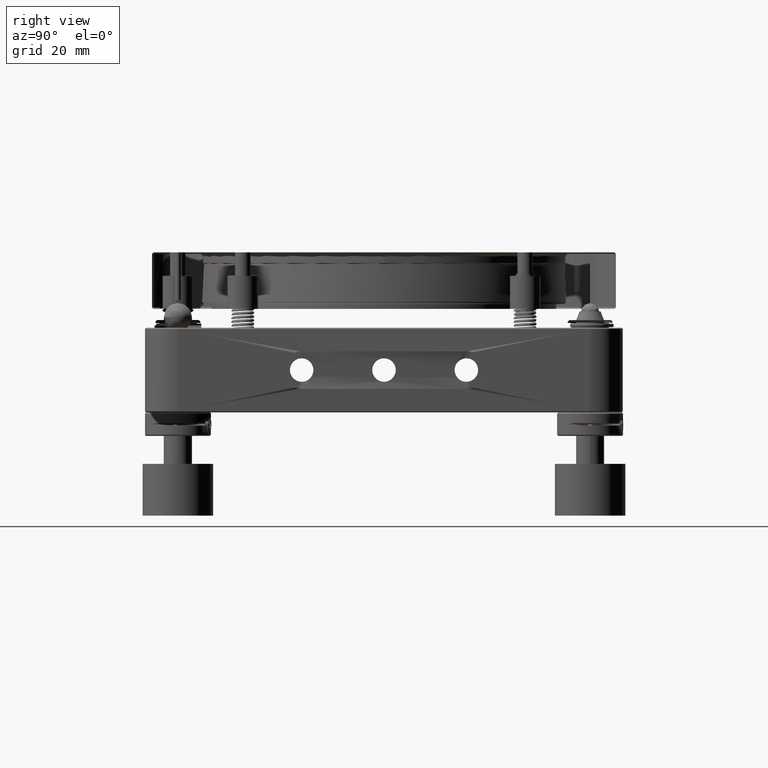
[diagram: clean part render]
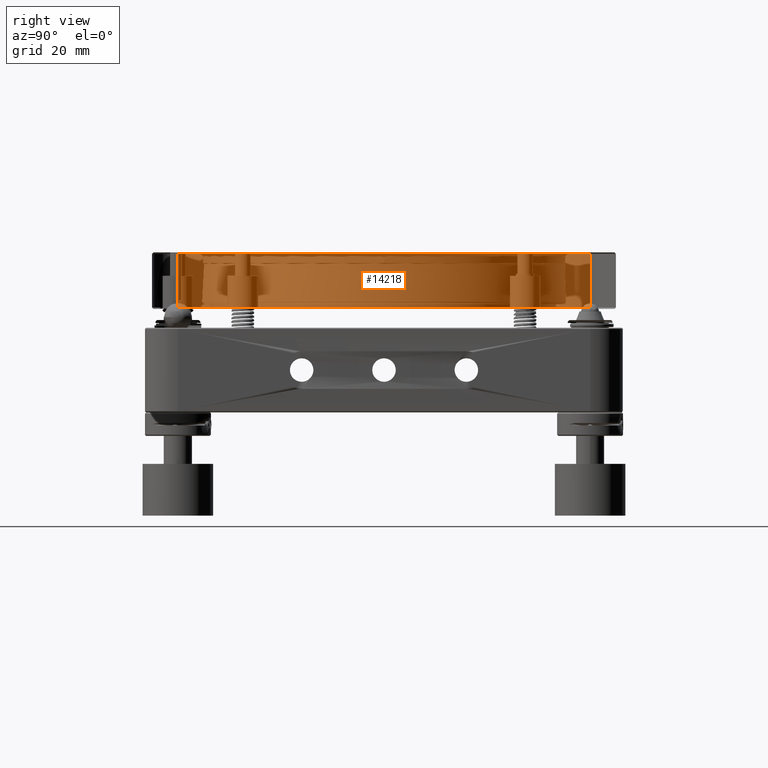
[diagram: same view with one face highlighted and labeled with its STEP entity id]
A machine part, right view. The second image highlights one B-rep face of the part: STEP entity #14218.
In plain terms, the highlighted planar face has unit normal (-1, 0, 0).
Its self-contained STEP definition (entity closure, byte-faithful):
#733 = EDGE_CURVE ( 'NONE', #1311, #13790, #16054, .T. ) ;
#1311 = VERTEX_POINT ( 'NONE', #11269 ) ;
#1874 = LINE ( 'NONE', #10932, #13564 ) ;
#1884 = FACE_OUTER_BOUND ( 'NONE', #15915, .T. ) ;
#2106 = VERTEX_POINT ( 'NONE', #14580 ) ;
#3074 = DIRECTION ( 'NONE',  ( 9.281232871995270543E-17, 1.000000000000000000, -9.281232871995703184E-17 ) ) ;
#3891 = LINE ( 'NONE', #14305, #14947 ) ;
#4887 = CARTESIAN_POINT ( 'NONE',  ( 49.29999999997574633, 43.79999999999991189, 24.70000000001314078 ) ) ;
#5746 = CARTESIAN_POINT ( 'NONE',  ( 49.29999999996568505, 43.79999999999991189, 13.29999999997916404 ) ) ;
#6611 = ORIENTED_EDGE ( 'NONE', *, *, #13563, .T. ) ;
#6993 = DIRECTION ( 'NONE',  ( 3.072818087426015747E-16, 1.000000000000000000, -0.000000000000000000 ) ) ;
#8138 = ORIENTED_EDGE ( 'NONE', *, *, #733, .T. ) ;
#9574 = CARTESIAN_POINT ( 'NONE',  ( 49.30000000000000426, -49.30000000000010374, 12.99999999999998401 ) ) ;
#10775 = PLANE ( 'NONE',  #12545 ) ;
#10932 = CARTESIAN_POINT ( 'NONE',  ( 49.30000000000001137, 1.657543570540130398E-14, 13.29999999999997584 ) ) ;
#11269 = CARTESIAN_POINT ( 'NONE',  ( 49.30000000000000426, -43.80000000000009663, 24.69999999999999929 ) ) ;
#11384 = ORIENTED_EDGE ( 'NONE', *, *, #13684, .T. ) ;
#11717 = EDGE_CURVE ( 'NONE', #2106, #13685, #1874, .T. ) ;
#12119 = CARTESIAN_POINT ( 'NONE',  ( 49.30000000000000426, -49.30000000000010374, 24.69999999999999929 ) ) ;
#12305 = DIRECTION ( 'NONE',  ( -1.000000000000000000, 3.072818087426015747E-16, 1.137208903880104703E-16 ) ) ;
#12315 = CARTESIAN_POINT ( 'NONE',  ( 49.30000000000000426, -43.80000000000009663, 12.99999999999998401 ) ) ;
#12545 = AXIS2_PLACEMENT_3D ( 'NONE', #9574, #12305, #14776 ) ;
#12567 = ORIENTED_EDGE ( 'NONE', *, *, #11717, .F. ) ;
#12637 = VECTOR ( 'NONE', #6993, 1000.000000000000000 ) ;
#13025 = DIRECTION ( 'NONE',  ( -1.137208903880104210E-16, 1.216571513026822848E-16, -1.000000000000000000 ) ) ;
#13563 = EDGE_CURVE ( 'NONE', #13790, #13685, #3891, .T. ) ;
#13564 = VECTOR ( 'NONE', #3074, 1000.000000000000000 ) ;
#13602 = DIRECTION ( 'NONE',  ( 1.137208903880104703E-16, -3.494436089024698985E-32, 1.000000000000000000 ) ) ;
#13684 = EDGE_CURVE ( 'NONE', #2106, #1311, #16330, .T. ) ;
#13685 = VERTEX_POINT ( 'NONE', #5746 ) ;
#13790 = VERTEX_POINT ( 'NONE', #4887 ) ;
#14218 = ADVANCED_FACE ( 'NONE', ( #1884 ), #10775, .T. ) ;
#14305 = CARTESIAN_POINT ( 'NONE',  ( 49.30000000000003268, 43.79999999999991189, 12.99999999999999645 ) ) ;
#14580 = CARTESIAN_POINT ( 'NONE',  ( 49.29999999998769766, -43.80000000000009663, 13.30000000000378435 ) ) ;
#14776 = DIRECTION ( 'NONE',  ( -3.072818087426015747E-16, -1.000000000000000000, 0.000000000000000000 ) ) ;
#14947 = VECTOR ( 'NONE', #13025, 1000.000000000000000 ) ;
#15774 = VECTOR ( 'NONE', #13602, 1000.000000000000000 ) ;
#15915 = EDGE_LOOP ( 'NONE', ( #8138, #6611, #12567, #11384 ) ) ;
#16054 = LINE ( 'NONE', #12119, #12637 ) ;
#16330 = LINE ( 'NONE', #12315, #15774 ) ;